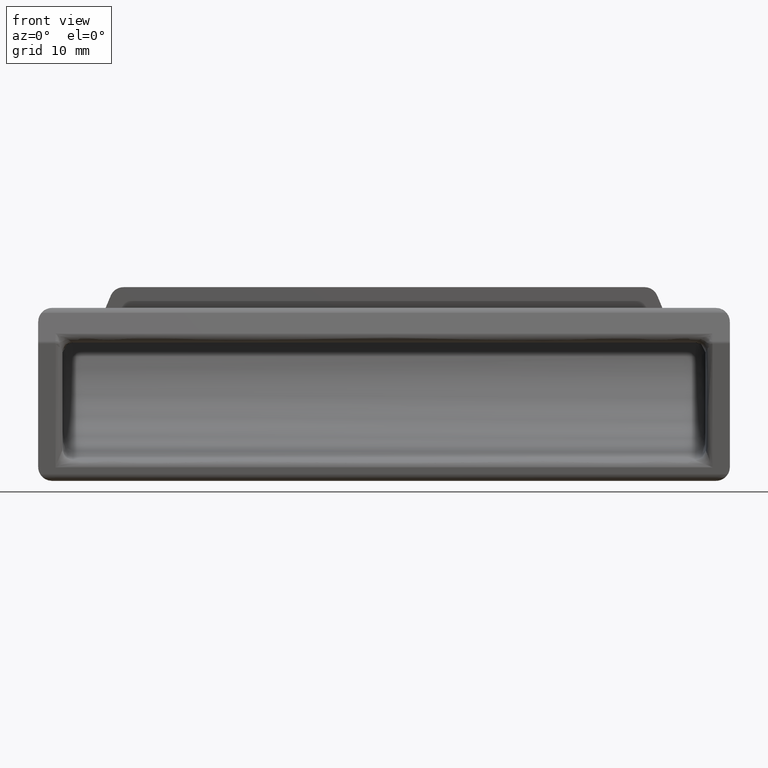
[diagram: clean part render]
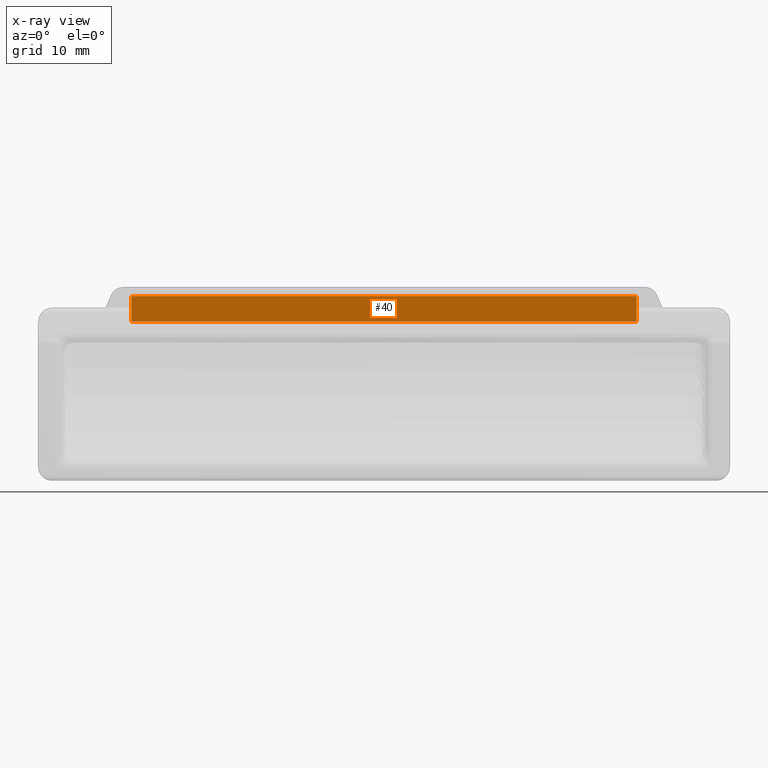
[diagram: x-ray — body ghosted, one internal face saturated and labeled with its STEP entity id]
A machine part, front view, then the same camera in x-ray: the body is ghosted and one INTERNAL B-rep face — a face not visible from any outside direction — is saturated and labeled: STEP entity #40.
In plain terms, the highlighted face is a freeform B-spline surface patch.
Its self-contained STEP definition (entity closure, byte-faithful):
#5=CARTESIAN_POINT('',(-40.146349858511840,3.100000000000000,14.634814992828680));
#6=CARTESIAN_POINT('',(-40.146349858511840,3.100000000000000,10.565184907929581));
#7=CARTESIAN_POINT('',(40.146351816524422,3.100000000000000,14.634814992828680));
#8=CARTESIAN_POINT('',(40.146351816524422,3.100000000000000,10.565184907929581));
#9=B_SPLINE_SURFACE_WITH_KNOTS('',1,1,((#5,#7),(#6,#8)),.UNSPECIFIED.,.F.,.F.,.U.,(2,2),(2,2),(0.0,4.069630084899099),(0.0,80.292701675036255),.UNSPECIFIED.);
#10=CARTESIAN_POINT('',(36.500000000000000,3.100000000000000,14.449999999999999));
#11=VERTEX_POINT('',#10);
#12=CARTESIAN_POINT('',(36.500000000000000,3.100000000000000,10.750000000000000));
#13=VERTEX_POINT('',#12);
#14=CARTESIAN_POINT('',(36.500000000000000,3.100000000000000,14.449999999999999));
#15=CARTESIAN_POINT('',(36.500000000000000,3.100000000000000,10.750000000000000));
#16=QUASI_UNIFORM_CURVE('',1,(#14,#15),.UNSPECIFIED.,.F.,.U.);
#17=EDGE_CURVE('',#11,#13,#16,.T.);
#18=ORIENTED_EDGE('',*,*,#17,.T.);
#19=CARTESIAN_POINT('',(-36.500000000000000,3.100000000000000,10.750000000000000));
#20=VERTEX_POINT('',#19);
#21=CARTESIAN_POINT('',(-36.500000000000000,3.100000000000000,10.750000000000000));
#22=CARTESIAN_POINT('',(36.500000000000000,3.100000000000000,10.750000000000000));
#23=QUASI_UNIFORM_CURVE('',1,(#21,#22),.UNSPECIFIED.,.F.,.U.);
#24=EDGE_CURVE('',#20,#13,#23,.T.);
#25=ORIENTED_EDGE('',*,*,#24,.F.);
#26=CARTESIAN_POINT('',(-36.500000000000000,3.100000000000000,14.449999999999999));
#27=VERTEX_POINT('',#26);
#28=CARTESIAN_POINT('',(-36.500000000000000,3.100000000000000,14.449999999999999));
#29=CARTESIAN_POINT('',(-36.500000000000000,3.100000000000000,10.750000000000000));
#30=QUASI_UNIFORM_CURVE('',1,(#28,#29),.UNSPECIFIED.,.F.,.U.);
#31=EDGE_CURVE('',#27,#20,#30,.T.);
#32=ORIENTED_EDGE('',*,*,#31,.F.);
#33=CARTESIAN_POINT('',(-36.500000000000000,3.100000000000000,14.449999999999999));
#34=CARTESIAN_POINT('',(36.500000000000000,3.100000000000000,14.449999999999999));
#35=QUASI_UNIFORM_CURVE('',1,(#33,#34),.UNSPECIFIED.,.F.,.U.);
#36=EDGE_CURVE('',#27,#11,#35,.T.);
#37=ORIENTED_EDGE('',*,*,#36,.T.);
#38=EDGE_LOOP('',(#18,#25,#32,#37));
#39=FACE_OUTER_BOUND('',#38,.T.);
#40=ADVANCED_FACE('',(#39),#9,.F.);